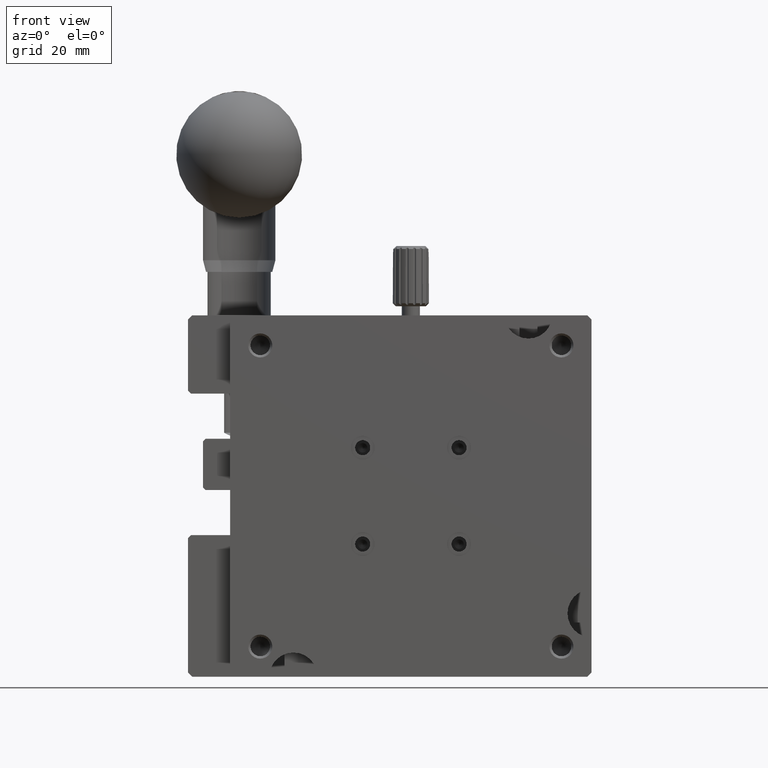
[diagram: clean part render]
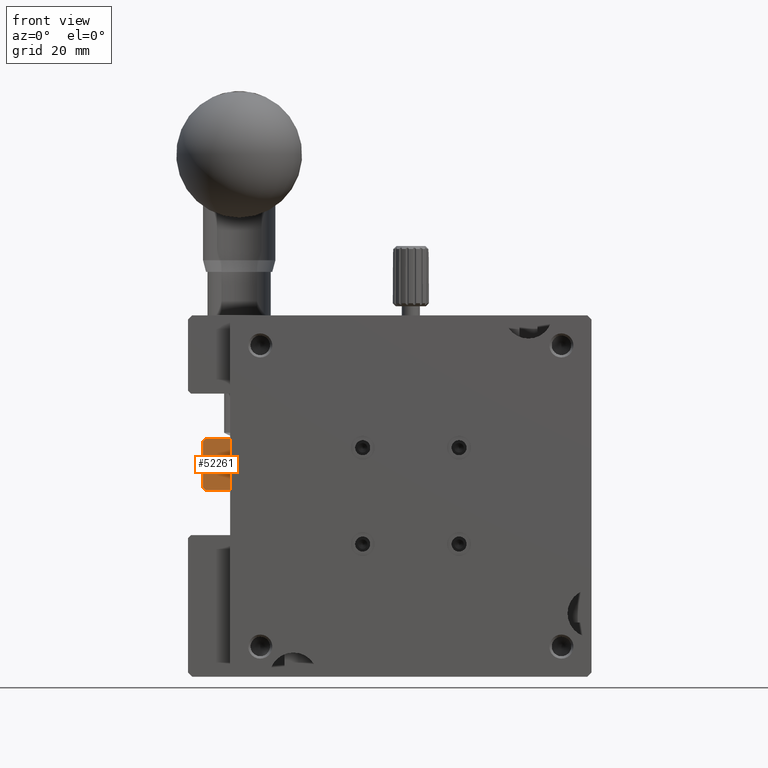
[diagram: same view with one face highlighted and labeled with its STEP entity id]
A machine part, front view. The second image highlights one B-rep face of the part: STEP entity #52261.
In plain terms, the highlighted planar face has unit normal (0, 1, 0).
Its self-contained STEP definition (entity closure, byte-faithful):
#6992 = CARTESIAN_POINT ( 'NONE',  ( -4.089999999999999858, 7.499999999999998224, -29.00000000000000000 ) ) ;
#7639 = CARTESIAN_POINT ( 'NONE',  ( -4.500000000000000888, 7.500000000000000000, 0.000000000000000000 ) ) ;
#9875 = VECTOR ( 'NONE', #82836, 1000.000000000000000 ) ;
#10524 = VERTEX_POINT ( 'NONE', #31631 ) ;
#15185 = EDGE_CURVE ( 'NONE', #18710, #10524, #18513, .T. ) ;
#15296 = ORIENTED_EDGE ( 'NONE', *, *, #82132, .F. ) ;
#16975 = VERTEX_POINT ( 'NONE', #57524 ) ;
#18513 = LINE ( 'NONE', #84478, #20442 ) ;
#18710 = VERTEX_POINT ( 'NONE', #56632 ) ;
#20442 = VECTOR ( 'NONE', #72344, 1000.000000000000000 ) ;
#20764 = VERTEX_POINT ( 'NONE', #25589 ) ;
#20912 = DIRECTION ( 'NONE',  ( 0.7071067811865474617, 0.000000000000000000, -0.7071067811865474617 ) ) ;
#22125 = VERTEX_POINT ( 'NONE', #34017 ) ;
#22553 = LINE ( 'NONE', #83288, #9875 ) ;
#25140 = VECTOR ( 'NONE', #68346, 1000.000000000000000 ) ;
#25589 = CARTESIAN_POINT ( 'NONE',  ( 0.000000000000000000, 7.500000000000000000, -29.00000000000000000 ) ) ;
#25897 = LINE ( 'NONE', #60619, #31790 ) ;
#27350 = EDGE_LOOP ( 'NONE', ( #47294, #55181, #28638, #65738, #72538, #15296 ) ) ;
#27969 = FACE_OUTER_BOUND ( 'NONE', #27350, .T. ) ;
#28638 = ORIENTED_EDGE ( 'NONE', *, *, #73953, .T. ) ;
#30897 = VECTOR ( 'NONE', #73593, 1000.000000000000000 ) ;
#31631 = CARTESIAN_POINT ( 'NONE',  ( 0.000000000000000000, 7.500000000000000000, -20.49999999999999645 ) ) ;
#31790 = VECTOR ( 'NONE', #52868, 1000.000000000000114 ) ;
#32016 = EDGE_CURVE ( 'NONE', #22125, #71883, #53951, .T. ) ;
#33213 = CARTESIAN_POINT ( 'NONE',  ( 0.000000000000000000, 7.500000000000000000, -59.28999999999999915 ) ) ;
#34017 = CARTESIAN_POINT ( 'NONE',  ( -4.500000000000000888, 7.499999999999998224, -28.58999999999999986 ) ) ;
#35326 = DIRECTION ( 'NONE',  ( 0.000000000000000000, 1.000000000000000000, 0.000000000000000000 ) ) ;
#37414 = VECTOR ( 'NONE', #20912, 1000.000000000000114 ) ;
#41006 = DIRECTION ( 'NONE',  ( 0.000000000000000000, -0.000000000000000000, 1.000000000000000000 ) ) ;
#41874 = LINE ( 'NONE', #7639, #25140 ) ;
#45129 = EDGE_CURVE ( 'NONE', #20764, #10524, #47151, .T. ) ;
#47151 = LINE ( 'NONE', #33213, #30897 ) ;
#47294 = ORIENTED_EDGE ( 'NONE', *, *, #45129, .T. ) ;
#52261 = ADVANCED_FACE ( 'NONE', ( #27969 ), #67070, .F. ) ;
#52868 = DIRECTION ( 'NONE',  ( -0.7071067811865474617, 0.000000000000000000, -0.7071067811865474617 ) ) ;
#53951 = LINE ( 'NONE', #80371, #37414 ) ;
#54493 = CARTESIAN_POINT ( 'NONE',  ( 0.000000000000000000, 7.500000000000000000, 0.000000000000000000 ) ) ;
#55181 = ORIENTED_EDGE ( 'NONE', *, *, #15185, .F. ) ;
#56632 = CARTESIAN_POINT ( 'NONE',  ( -4.089999999999999858, 7.499999999999998224, -20.50000000000000000 ) ) ;
#57524 = CARTESIAN_POINT ( 'NONE',  ( -4.500000000000000888, 7.499999999999998224, -20.90999999999999659 ) ) ;
#60619 = CARTESIAN_POINT ( 'NONE',  ( -4.500000000000000888, 7.499999999999996447, -20.91000000000000014 ) ) ;
#65738 = ORIENTED_EDGE ( 'NONE', *, *, #84283, .F. ) ;
#67070 = PLANE ( 'NONE',  #71348 ) ;
#68346 = DIRECTION ( 'NONE',  ( 0.000000000000000000, -0.000000000000000000, 1.000000000000000000 ) ) ;
#71348 = AXIS2_PLACEMENT_3D ( 'NONE', #54493, #35326, #41006 ) ;
#71883 = VERTEX_POINT ( 'NONE', #6992 ) ;
#72344 = DIRECTION ( 'NONE',  ( 1.000000000000000000, 0.000000000000000000, -0.000000000000000000 ) ) ;
#72538 = ORIENTED_EDGE ( 'NONE', *, *, #32016, .T. ) ;
#73593 = DIRECTION ( 'NONE',  ( -0.000000000000000000, -0.000000000000000000, 1.000000000000000000 ) ) ;
#73953 = EDGE_CURVE ( 'NONE', #18710, #16975, #25897, .T. ) ;
#80371 = CARTESIAN_POINT ( 'NONE',  ( -4.089999999999999858, 7.499999999999996447, -29.00000000000000000 ) ) ;
#82132 = EDGE_CURVE ( 'NONE', #20764, #71883, #22553, .T. ) ;
#82836 = DIRECTION ( 'NONE',  ( -1.000000000000000000, -0.000000000000000000, 0.000000000000000000 ) ) ;
#83288 = CARTESIAN_POINT ( 'NONE',  ( 0.000000000000000000, 7.500000000000000000, -29.00000000000000000 ) ) ;
#84283 = EDGE_CURVE ( 'NONE', #22125, #16975, #41874, .T. ) ;
#84478 = CARTESIAN_POINT ( 'NONE',  ( 0.000000000000000000, 7.500000000000000000, -20.50000000000000000 ) ) ;